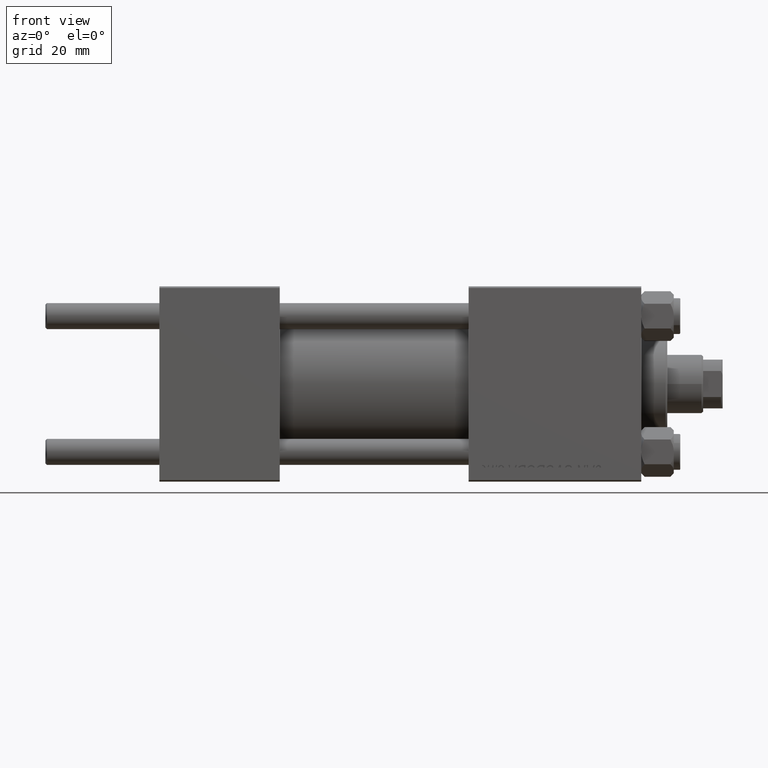
[diagram: clean part render]
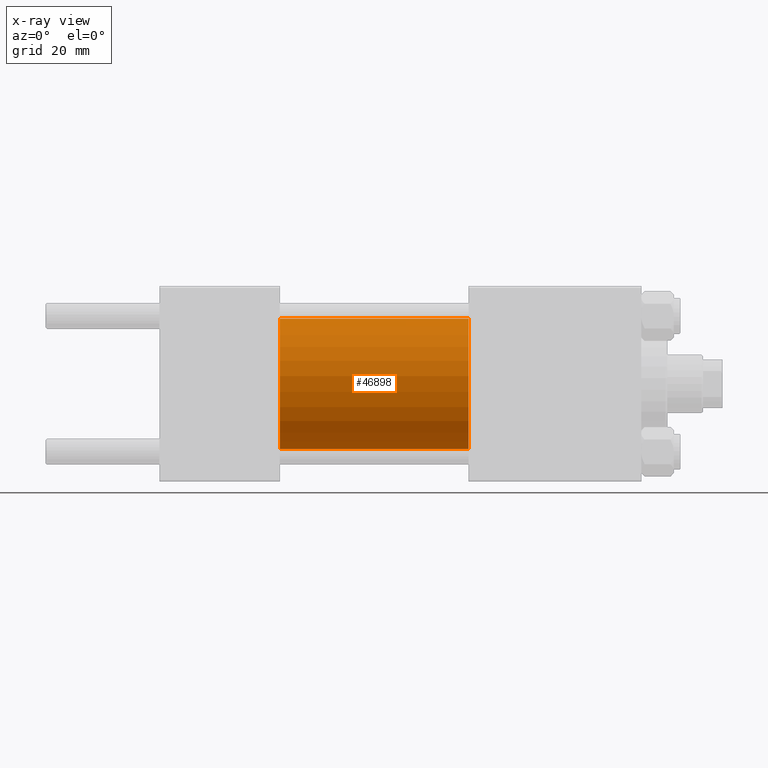
[diagram: x-ray — body ghosted, one internal face saturated and labeled with its STEP entity id]
A machine part, front view, then the same camera in x-ray: the body is ghosted and one INTERNAL B-rep face — a face not visible from any outside direction — is saturated and labeled: STEP entity #46898.
In plain terms, the highlighted cylindrical surface (partial cylindrical patch) has radius 20 mm, axis along (-1, -0, -0).
Its self-contained STEP definition (entity closure, byte-faithful):
#968 = CARTESIAN_POINT ( 'NONE',  ( 95.00000000000000000, 0.000000000000000000, 20.00000000000000000 ) ) ;
#2441 = VECTOR ( 'NONE', #44542, 1000.000000000000000 ) ;
#4375 = CARTESIAN_POINT ( 'NONE',  ( 95.00000000000000000, 2.449293598294706119E-15, -20.00000000000000000 ) ) ;
#6447 = LINE ( 'NONE', #17551, #2441 ) ;
#7758 = VERTEX_POINT ( 'NONE', #17391 ) ;
#8162 = LINE ( 'NONE', #4375, #18103 ) ;
#10409 = DIRECTION ( 'NONE',  ( -1.000000000000000000, -0.000000000000000000, -0.000000000000000000 ) ) ;
#12419 = ORIENTED_EDGE ( 'NONE', *, *, #37446, .F. ) ;
#14209 = CARTESIAN_POINT ( 'NONE',  ( 95.00000000000000000, 0.000000000000000000, 0.000000000000000000 ) ) ;
#16824 = VERTEX_POINT ( 'NONE', #968 ) ;
#17278 = AXIS2_PLACEMENT_3D ( 'NONE', #36758, #21132, #32731 ) ;
#17391 = CARTESIAN_POINT ( 'NONE',  ( 37.00000000000000000, 0.000000000000000000, 20.00000000000000000 ) ) ;
#17551 = CARTESIAN_POINT ( 'NONE',  ( 95.00000000000000000, 0.000000000000000000, 20.00000000000000000 ) ) ;
#18103 = VECTOR ( 'NONE', #10409, 1000.000000000000000 ) ;
#19233 = ORIENTED_EDGE ( 'NONE', *, *, #38027, .T. ) ;
#21132 = DIRECTION ( 'NONE',  ( 1.000000000000000000, 0.000000000000000000, 0.000000000000000000 ) ) ;
#22809 = EDGE_CURVE ( 'NONE', #16824, #7758, #6447, .T. ) ;
#23248 = ORIENTED_EDGE ( 'NONE', *, *, #36823, .T. ) ;
#32731 = DIRECTION ( 'NONE',  ( 0.000000000000000000, 0.000000000000000000, -1.000000000000000000 ) ) ;
#32985 = CARTESIAN_POINT ( 'NONE',  ( 37.00000000000000000, 2.449293598294706119E-15, -20.00000000000000000 ) ) ;
#33373 = FACE_OUTER_BOUND ( 'NONE', #46476, .T. ) ;
#34509 = AXIS2_PLACEMENT_3D ( 'NONE', #14209, #44985, #41192 ) ;
#36255 = CARTESIAN_POINT ( 'NONE',  ( 95.00000000000000000, 2.449293598294706119E-15, -20.00000000000000000 ) ) ;
#36758 = CARTESIAN_POINT ( 'NONE',  ( 95.00000000000000000, 0.000000000000000000, 0.000000000000000000 ) ) ;
#36823 = EDGE_CURVE ( 'NONE', #16824, #48765, #46256, .T. ) ;
#37446 = EDGE_CURVE ( 'NONE', #7758, #39405, #47941, .T. ) ;
#38027 = EDGE_CURVE ( 'NONE', #48765, #39405, #8162, .T. ) ;
#39405 = VERTEX_POINT ( 'NONE', #32985 ) ;
#41192 = DIRECTION ( 'NONE',  ( 0.000000000000000000, 0.000000000000000000, 1.000000000000000000 ) ) ;
#41473 = AXIS2_PLACEMENT_3D ( 'NONE', #48618, #48373, #45082 ) ;
#44542 = DIRECTION ( 'NONE',  ( -1.000000000000000000, -0.000000000000000000, -0.000000000000000000 ) ) ;
#44985 = DIRECTION ( 'NONE',  ( -1.000000000000000000, -0.000000000000000000, -0.000000000000000000 ) ) ;
#45082 = DIRECTION ( 'NONE',  ( 0.000000000000000000, 0.000000000000000000, -1.000000000000000000 ) ) ;
#46256 = CIRCLE ( 'NONE', #17278, 20.00000000000000000 ) ;
#46476 = EDGE_LOOP ( 'NONE', ( #23248, #19233, #12419, #47781 ) ) ;
#46898 = ADVANCED_FACE ( 'NONE', ( #33373 ), #48764, .F. ) ;
#47781 = ORIENTED_EDGE ( 'NONE', *, *, #22809, .F. ) ;
#47941 = CIRCLE ( 'NONE', #41473, 20.00000000000000000 ) ;
#48373 = DIRECTION ( 'NONE',  ( 1.000000000000000000, 0.000000000000000000, 0.000000000000000000 ) ) ;
#48618 = CARTESIAN_POINT ( 'NONE',  ( 37.00000000000000000, 0.000000000000000000, 0.000000000000000000 ) ) ;
#48764 = CYLINDRICAL_SURFACE ( 'NONE', #34509, 20.00000000000000000 ) ;
#48765 = VERTEX_POINT ( 'NONE', #36255 ) ;